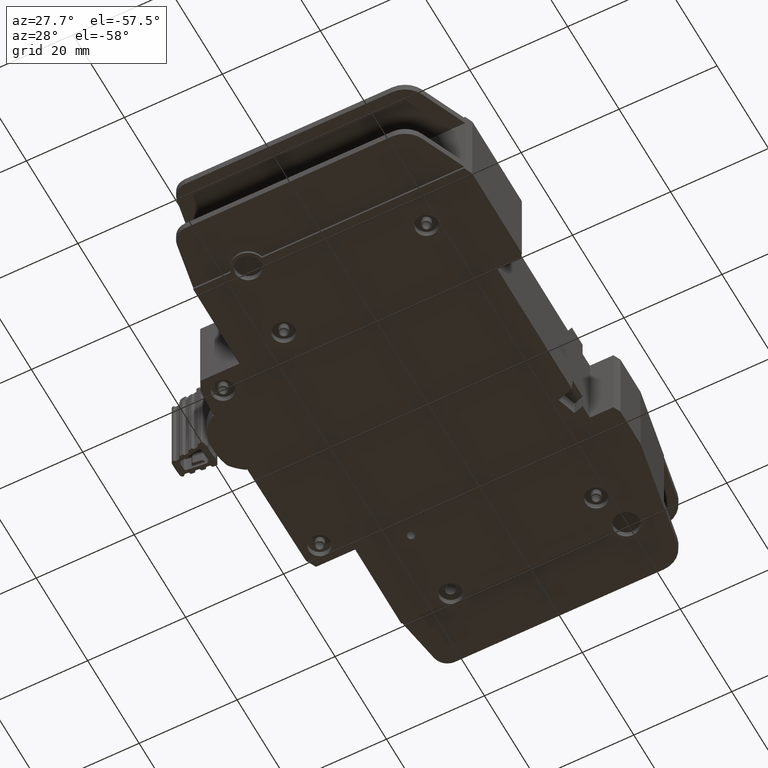
[diagram: clean part render]
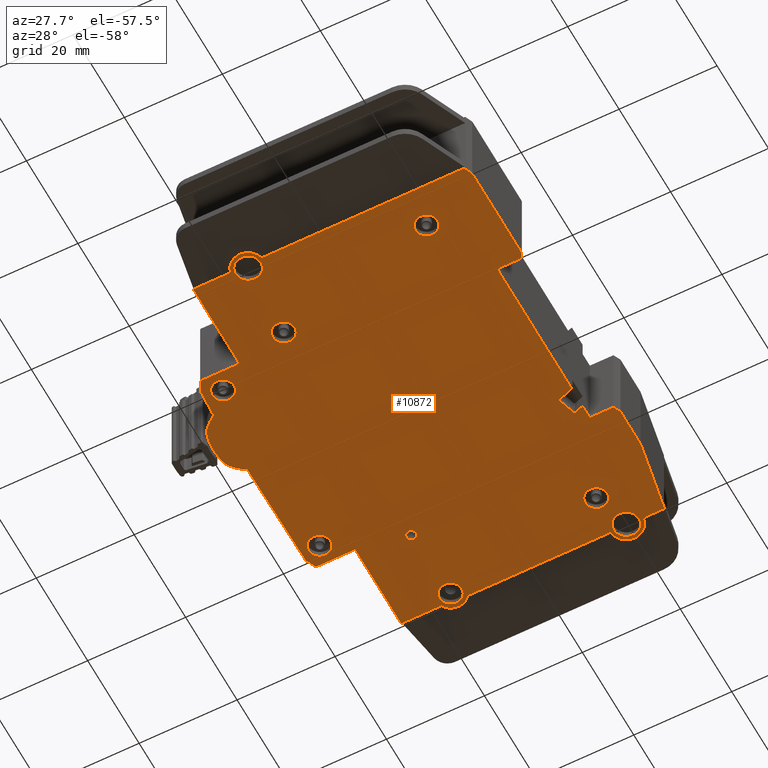
[diagram: same view with one face highlighted and labeled with its STEP entity id]
A machine part, auxiliary view. The second image highlights one B-rep face of the part: STEP entity #10872.
In plain terms, the highlighted planar face has unit normal (0, 0, -1).
Its self-contained STEP definition (entity closure, byte-faithful):
#1 = EDGE_CURVE ( 'NONE', #31551, #203, #27832, .T. ) ;
#8 = CARTESIAN_POINT ( 'NONE',  ( 1.456692913385826849, 1.299212598425196985, 0.0000000000000000000 ) ) ;
#156 = CARTESIAN_POINT ( 'NONE',  ( 0.2914000834140259566, -1.602362204724410377, 0.0000000000000000000 ) ) ;
#162 = VERTEX_POINT ( 'NONE', #7066 ) ;
#167 = DIRECTION ( 'NONE',  ( -1.000000000000000000, 0.0000000000000000000, 0.0000000000000000000 ) ) ;
#203 = VERTEX_POINT ( 'NONE', #4779 ) ;
#233 = EDGE_CURVE ( 'NONE', #17826, #17899, #19640, .T. ) ;
#293 = AXIS2_PLACEMENT_3D ( 'NONE', #4706, #29381, #1325 ) ;
#318 = CARTESIAN_POINT ( 'NONE',  ( 1.845290172061811118, 1.602362204724409711, 0.0000000000000000000 ) ) ;
#328 = AXIS2_PLACEMENT_3D ( 'NONE', #21219, #15981, #6201 ) ;
#342 = AXIS2_PLACEMENT_3D ( 'NONE', #3867, #13817, #13662 ) ;
#366 = CARTESIAN_POINT ( 'NONE',  ( -0.6349828163406381343, -0.06777308917113357423, 0.0000000000000000000 ) ) ;
#408 = CARTESIAN_POINT ( 'NONE',  ( 1.732283464566910514, 0.5669291338582094220, 0.0000000000000000000 ) ) ;
#468 = DIRECTION ( 'NONE',  ( -0.3049106779729056083, -0.9523809523809803057, 0.0000000000000000000 ) ) ;
#476 = DIRECTION ( 'NONE',  ( 0.0000000000000000000, 0.0000000000000000000, -1.000000000000000000 ) ) ;
#513 = VECTOR ( 'NONE', #13830, 39.37007874015748143 ) ;
#520 = LINE ( 'NONE', #15047, #16093 ) ;
#621 = VECTOR ( 'NONE', #11258, 39.37007874015748143 ) ;
#655 = DIRECTION ( 'NONE',  ( 0.0000000000000000000, 0.0000000000000000000, -1.000000000000000000 ) ) ;
#677 = ORIENTED_EDGE ( 'NONE', *, *, #31386, .T. ) ;
#768 = CARTESIAN_POINT ( 'NONE',  ( -0.6296502118858919861, -0.5765006055866820356, 0.0000000000000000000 ) ) ;
#774 = VECTOR ( 'NONE', #4413, 39.37007874015748143 ) ;
#783 = VERTEX_POINT ( 'NONE', #8164 ) ;
#891 = CARTESIAN_POINT ( 'NONE',  ( 1.413624652818894933, 1.602362204724409711, 0.0000000000000000000 ) ) ;
#904 = DIRECTION ( 'NONE',  ( 0.0000000000000000000, 0.0000000000000000000, -1.000000000000000000 ) ) ;
#987 = AXIS2_PLACEMENT_3D ( 'NONE', #2042, #22283, #24106 ) ;
#997 = VECTOR ( 'NONE', #8603, 39.37007874015747433 ) ;
#1152 = VERTEX_POINT ( 'NONE', #8122 ) ;
#1179 = DIRECTION ( 'NONE',  ( -1.000000000000000000, 0.0000000000000000000, 0.0000000000000000000 ) ) ;
#1205 = DIRECTION ( 'NONE',  ( 0.0000000000000000000, 0.0000000000000000000, -1.000000000000000000 ) ) ;
#1235 = VERTEX_POINT ( 'NONE', #15462 ) ;
#1302 = ORIENTED_EDGE ( 'NONE', *, *, #7611, .T. ) ;
#1325 = DIRECTION ( 'NONE',  ( -1.000000000000000000, 0.0000000000000000000, 0.0000000000000000000 ) ) ;
#1333 = CARTESIAN_POINT ( 'NONE',  ( 0.1456692913385821964, 0.9645669291338583307, 0.0000000000000000000 ) ) ;
#1495 = VERTEX_POINT ( 'NONE', #13982 ) ;
#1561 = VERTEX_POINT ( 'NONE', #14296 ) ;
#1574 = CARTESIAN_POINT ( 'NONE',  ( 0.06299212598425200926, -1.570866141732283339, 0.0000000000000000000 ) ) ;
#1729 = CARTESIAN_POINT ( 'NONE',  ( 1.456692913385826849, -1.299212598425196985, 0.0000000000000000000 ) ) ;
#1856 = CARTESIAN_POINT ( 'NONE',  ( 0.03759857685364219326, -1.594488188976377119, 0.0000000000000000000 ) ) ;
#1938 = EDGE_LOOP ( 'NONE', ( #6015, #32004 ) ) ;
#1956 = ORIENTED_EDGE ( 'NONE', *, *, #25618, .T. ) ;
#2007 = CARTESIAN_POINT ( 'NONE',  ( 1.922442001620825236, -0.7416773991594151072, 0.0000000000000000000 ) ) ;
#2036 = EDGE_CURVE ( 'NONE', #27119, #2867, #15822, .T. ) ;
#2042 = CARTESIAN_POINT ( 'NONE',  ( -0.6064378462204724762, -0.8040211424700787202, 0.0000000000000000000 ) ) ;
#2068 = FACE_BOUND ( 'NONE', #4543, .T. ) ;
#2085 = CARTESIAN_POINT ( 'NONE',  ( 0.04921259842519688094, -0.9724409448818898127, 0.0000000000000000000 ) ) ;
#2111 = LINE ( 'NONE', #9464, #27637 ) ;
#2170 = ORIENTED_EDGE ( 'NONE', *, *, #19224, .F. ) ;
#2181 = DIRECTION ( 'NONE',  ( 0.0000000000000000000, 0.0000000000000000000, -1.000000000000000000 ) ) ;
#2269 = EDGE_CURVE ( 'NONE', #203, #3573, #13542, .T. ) ;
#2273 = LINE ( 'NONE', #9620, #774 ) ;
#2311 = CARTESIAN_POINT ( 'NONE',  ( 1.948818897637821124, 1.036077788417322898, 0.0000000000000000000 ) ) ;
#2365 = VERTEX_POINT ( 'NONE', #2417 ) ;
#2417 = CARTESIAN_POINT ( 'NONE',  ( 0.2677165354330708902, -1.570866141732283339, 0.0000000000000000000 ) ) ;
#2451 = EDGE_LOOP ( 'NONE', ( #19439, #16288 ) ) ;
#2532 = EDGE_CURVE ( 'NONE', #4050, #24825, #12858, .T. ) ;
#2786 = CARTESIAN_POINT ( 'NONE',  ( 0.2718902293522447167, 1.602362204724409933, 0.0000000000000000000 ) ) ;
#2867 = VERTEX_POINT ( 'NONE', #29980 ) ;
#2893 = DIRECTION ( 'NONE',  ( 0.0000000000000000000, 0.0000000000000000000, -1.000000000000000000 ) ) ;
#2905 = VECTOR ( 'NONE', #9213, 39.37007874015748143 ) ;
#2975 = DIRECTION ( 'NONE',  ( 0.6139406135174030332, -0.7893522173743953152, 0.0000000000000000000 ) ) ;
#2976 = ORIENTED_EDGE ( 'NONE', *, *, #5401, .T. ) ;
#3067 = CARTESIAN_POINT ( 'NONE',  ( -0.4724409448818898127, -0.7401574803149606474, 0.0000000000000000000 ) ) ;
#3097 = DIRECTION ( 'NONE',  ( -1.000000000000000000, 0.0000000000000000000, 0.0000000000000000000 ) ) ;
#3117 = DIRECTION ( 'NONE',  ( -8.478819844830520351E-14, -1.000000000000000000, 0.0000000000000000000 ) ) ;
#3189 = DIRECTION ( 'NONE',  ( -0.9523809523811807010, 0.3049106779722792759, 0.0000000000000000000 ) ) ;
#3262 = ORIENTED_EDGE ( 'NONE', *, *, #13115, .T. ) ;
#3309 = CARTESIAN_POINT ( 'NONE',  ( -0.5714405434401574890, 0.8740157480314961758, 0.0000000000000000000 ) ) ;
#3441 = EDGE_CURVE ( 'NONE', #7361, #4239, #12511, .T. ) ;
#3573 = VERTEX_POINT ( 'NONE', #8271 ) ;
#3860 = DIRECTION ( 'NONE',  ( 1.000000000000000000, 0.0000000000000000000, 0.0000000000000000000 ) ) ;
#3867 = CARTESIAN_POINT ( 'NONE',  ( 1.456692913385826849, -1.299212598425196985, 0.0000000000000000000 ) ) ;
#3879 = CARTESIAN_POINT ( 'NONE',  ( -0.2637795275551181318, -0.8858267716535433989, 0.0000000000000000000 ) ) ;
#3964 = ORIENTED_EDGE ( 'NONE', *, *, #11913, .F. ) ;
#4050 = VERTEX_POINT ( 'NONE', #21292 ) ;
#4087 = DIRECTION ( 'NONE',  ( -1.000000000000000000, 0.0000000000000000000, 0.0000000000000000000 ) ) ;
#4156 = CARTESIAN_POINT ( 'NONE',  ( 1.543307086614173596, 1.594488188976378007, 0.0000000000000000000 ) ) ;
#4193 = EDGE_CURVE ( 'NONE', #5305, #10523, #26830, .T. ) ;
#4239 = VERTEX_POINT ( 'NONE', #10149 ) ;
#4256 = DIRECTION ( 'NONE',  ( 0.0000000000000000000, 0.0000000000000000000, -1.000000000000000000 ) ) ;
#4323 = EDGE_CURVE ( 'NONE', #27127, #9149, #27330, .T. ) ;
#4369 = CARTESIAN_POINT ( 'NONE',  ( 0.1377952755905511861, -0.9724409448818898127, 0.0000000000000000000 ) ) ;
#4413 = DIRECTION ( 'NONE',  ( -0.0000000000000000000, 1.000000000000000000, -0.0000000000000000000 ) ) ;
#4415 = VERTEX_POINT ( 'NONE', #22485 ) ;
#4481 = CARTESIAN_POINT ( 'NONE',  ( 0.1653543307086614567, 1.531496062992125928, 0.0000000000000000000 ) ) ;
#4516 = CARTESIAN_POINT ( 'NONE',  ( -0.3838582677165353618, -0.7401574803149606474, 0.0000000000000000000 ) ) ;
#4532 = CARTESIAN_POINT ( 'NONE',  ( 0.1653543307086614567, 1.531496062992125928, 0.0000000000000000000 ) ) ;
#4543 = EDGE_LOOP ( 'NONE', ( #3964, #25817 ) ) ;
#4556 = LINE ( 'NONE', #12048, #23949 ) ;
#4585 = VERTEX_POINT ( 'NONE', #1574 ) ;
#4638 = DIRECTION ( 'NONE',  ( -1.000000000000000000, 0.0000000000000000000, 0.0000000000000000000 ) ) ;
#4658 = DIRECTION ( 'NONE',  ( 0.0000000000000000000, 0.0000000000000000000, -1.000000000000000000 ) ) ;
#4692 = VERTEX_POINT ( 'NONE', #26877 ) ;
#4706 = CARTESIAN_POINT ( 'NONE',  ( 1.919334315725590656, -0.7440944881889763884, 0.0000000000000000000 ) ) ;
#4725 = CIRCLE ( 'NONE', #17750, 0.08858267716535440928 ) ;
#4760 = CARTESIAN_POINT ( 'NONE',  ( 1.368110236220472231, -1.299212598425196985, 0.0000000000000000000 ) ) ;
#4779 = CARTESIAN_POINT ( 'NONE',  ( 1.948818897637795589, -1.535433070866142113, 0.0000000000000000000 ) ) ;
#4844 = DIRECTION ( 'NONE',  ( -1.000000000000000000, 4.439704500431484846E-16, -0.0000000000000000000 ) ) ;
#4862 = EDGE_CURVE ( 'NONE', #24432, #783, #28922, .T. ) ;
#4873 = CIRCLE ( 'NONE', #23118, 0.03937007874015751446 ) ;
#4924 = CIRCLE ( 'NONE', #23186, 0.1023622047244094335 ) ;
#4979 = ORIENTED_EDGE ( 'NONE', *, *, #6341, .T. ) ;
#5002 = EDGE_LOOP ( 'NONE', ( #7218, #23379 ) ) ;
#5091 = CARTESIAN_POINT ( 'NONE',  ( 1.948818897637821124, 1.036077788417322898, 0.0000000000000000000 ) ) ;
#5105 = DIRECTION ( 'NONE',  ( -1.000000000000000000, 0.0000000000000000000, 0.0000000000000000000 ) ) ;
#5112 = ORIENTED_EDGE ( 'NONE', *, *, #13773, .T. ) ;
#5151 = DIRECTION ( 'NONE',  ( 0.0000000000000000000, 0.0000000000000000000, -1.000000000000000000 ) ) ;
#5169 = VERTEX_POINT ( 'NONE', #9523 ) ;
#5232 = CARTESIAN_POINT ( 'NONE',  ( -0.5714405434401574890, -0.8740157480314961758, 0.0000000000000000000 ) ) ;
#5265 = VECTOR ( 'NONE', #25042, 39.37007874015748143 ) ;
#5305 = VERTEX_POINT ( 'NONE', #15215 ) ;
#5363 = EDGE_CURVE ( 'NONE', #4692, #26745, #4873, .T. ) ;
#5379 = VERTEX_POINT ( 'NONE', #18330 ) ;
#5401 = EDGE_CURVE ( 'NONE', #5495, #8620, #21099, .T. ) ;
#5495 = VERTEX_POINT ( 'NONE', #26803 ) ;
#5519 = DIRECTION ( 'NONE',  ( -1.000000000000000000, 0.0000000000000000000, 0.0000000000000000000 ) ) ;
#5569 = AXIS2_PLACEMENT_3D ( 'NONE', #27894, #15141, #10418 ) ;
#5580 = LINE ( 'NONE', #5091, #16130 ) ;
#5644 = CARTESIAN_POINT ( 'NONE',  ( -0.5714405434401574890, 0.8858267716535432879, 0.0000000000000000000 ) ) ;
#5744 = LINE ( 'NONE', #2786, #26592 ) ;
#5772 = ORIENTED_EDGE ( 'NONE', *, *, #6898, .T. ) ;
#5849 = CARTESIAN_POINT ( 'NONE',  ( 1.944881889763779625, 0.7332128660531496145, 0.0000000000000000000 ) ) ;
#5850 = ORIENTED_EDGE ( 'NONE', *, *, #4193, .T. ) ;
#6015 = ORIENTED_EDGE ( 'NONE', *, *, #10838, .F. ) ;
#6030 = ORIENTED_EDGE ( 'NONE', *, *, #29300, .T. ) ;
#6099 = EDGE_CURVE ( 'NONE', #16084, #25057, #30465, .T. ) ;
#6103 = CIRCLE ( 'NONE', #342, 0.08858267716535440928 ) ;
#6201 = DIRECTION ( 'NONE',  ( -1.000000000000000000, 0.0000000000000000000, 0.0000000000000000000 ) ) ;
#6203 = CARTESIAN_POINT ( 'NONE',  ( 1.732283464566929165, 0.6771653543307086798, 0.0000000000000000000 ) ) ;
#6210 = CARTESIAN_POINT ( 'NONE',  ( 1.948818897637795589, -1.535433070866142113, 0.0000000000000000000 ) ) ;
#6341 = EDGE_CURVE ( 'NONE', #27586, #4415, #21948, .T. ) ;
#6357 = VECTOR ( 'NONE', #22536, 39.37007874015748854 ) ;
#6377 = ORIENTED_EDGE ( 'NONE', *, *, #30903, .T. ) ;
#6408 = CARTESIAN_POINT ( 'NONE',  ( -0.2637795275551181318, 1.590918757138582551, 0.0000000000000000000 ) ) ;
#6497 = EDGE_CURVE ( 'NONE', #162, #8159, #24750, .T. ) ;
#6742 = CIRCLE ( 'NONE', #30191, 0.003937007873978161723 ) ;
#6810 = LINE ( 'NONE', #26081, #22155 ) ;
#6855 = ORIENTED_EDGE ( 'NONE', *, *, #10353, .T. ) ;
#6898 = EDGE_CURVE ( 'NONE', #13786, #14812, #6810, .T. ) ;
#6976 = VERTEX_POINT ( 'NONE', #14141 ) ;
#6985 = DIRECTION ( 'NONE',  ( -1.000000000000000000, 0.0000000000000000000, 0.0000000000000000000 ) ) ;
#7000 = VECTOR ( 'NONE', #12277, 39.37007874015748854 ) ;
#7053 = CIRCLE ( 'NONE', #13824, 0.1023622047244094335 ) ;
#7066 = CARTESIAN_POINT ( 'NONE',  ( -0.5610236220472442081, 0.7401574803149606474, 0.0000000000000000000 ) ) ;
#7067 = CARTESIAN_POINT ( 'NONE',  ( 1.605525877484638819, 0.4421570320558844136, 0.0000000000000000000 ) ) ;
#7179 = CIRCLE ( 'NONE', #25437, 0.07874015748035355367 ) ;
#7218 = ORIENTED_EDGE ( 'NONE', *, *, #20511, .F. ) ;
#7228 = ORIENTED_EDGE ( 'NONE', *, *, #5363, .F. ) ;
#7307 = DIRECTION ( 'NONE',  ( 0.0000000000000000000, 0.0000000000000000000, -1.000000000000000000 ) ) ;
#7361 = VERTEX_POINT ( 'NONE', #26529 ) ;
#7372 = EDGE_CURVE ( 'NONE', #9149, #27127, #13322, .T. ) ;
#7379 = VECTOR ( 'NONE', #25184, 39.37007874015748143 ) ;
#7407 = AXIS2_PLACEMENT_3D ( 'NONE', #5232, #30541, #27441 ) ;
#7462 = ORIENTED_EDGE ( 'NONE', *, *, #22506, .T. ) ;
#7477 = CARTESIAN_POINT ( 'NONE',  ( 0.1377952755905511861, -0.9724409448818898127, 0.0000000000000000000 ) ) ;
#7481 = VECTOR ( 'NONE', #8689, 39.37007874015748143 ) ;
#7548 = AXIS2_PLACEMENT_3D ( 'NONE', #28144, #23555, #1179 ) ;
#7611 = EDGE_CURVE ( 'NONE', #1152, #21867, #8213, .T. ) ;
#7636 = CIRCLE ( 'NONE', #26921, 0.08858267716535431213 ) ;
#7664 = ORIENTED_EDGE ( 'NONE', *, *, #2036, .T. ) ;
#7859 = DIRECTION ( 'NONE',  ( 1.000000000000000000, -2.392717551047946201E-16, 0.0000000000000000000 ) ) ;
#7891 = DIRECTION ( 'NONE',  ( -1.000000000000000000, 0.0000000000000000000, 0.0000000000000000000 ) ) ;
#7894 = AXIS2_PLACEMENT_3D ( 'NONE', #18843, #13007, #19173 ) ;
#7903 = DIRECTION ( 'NONE',  ( -0.4472135954999984508, 0.8944271909998956493, -0.0000000000000000000 ) ) ;
#7968 = DIRECTION ( 'NONE',  ( 0.0000000000000000000, 0.0000000000000000000, -1.000000000000000000 ) ) ;
#8056 = LINE ( 'NONE', #22274, #16465 ) ;
#8122 = CARTESIAN_POINT ( 'NONE',  ( -0.6349828163406381343, -0.06777308917113357423, 0.0000000000000000000 ) ) ;
#8158 = ORIENTED_EDGE ( 'NONE', *, *, #2532, .T. ) ;
#8159 = VERTEX_POINT ( 'NONE', #18782 ) ;
#8164 = CARTESIAN_POINT ( 'NONE',  ( -0.7444939905114448253, -0.4710958578853602918, 0.0000000000000000000 ) ) ;
#8213 = LINE ( 'NONE', #366, #28998 ) ;
#8233 = CARTESIAN_POINT ( 'NONE',  ( 1.948818897637770275, -0.7769413690948819839, 0.0000000000000000000 ) ) ;
#8244 = AXIS2_PLACEMENT_3D ( 'NONE', #32169, #9471, #29567 ) ;
#8271 = CARTESIAN_POINT ( 'NONE',  ( 1.919020127361367845, -1.602362204724387951, 0.0000000000000000000 ) ) ;
#8467 = ORIENTED_EDGE ( 'NONE', *, *, #6497, .F. ) ;
#8603 = DIRECTION ( 'NONE',  ( 0.4472135954999986174, 0.8944271909998956493, -0.0000000000000000000 ) ) ;
#8620 = VERTEX_POINT ( 'NONE', #22417 ) ;
#8681 = CIRCLE ( 'NONE', #5569, 0.4448818897637299430 ) ;
#8689 = DIRECTION ( 'NONE',  ( 1.000000000000000000, 0.0000000000000000000, 0.0000000000000000000 ) ) ;
#8759 = VERTEX_POINT ( 'NONE', #17838 ) ;
#8770 = EDGE_LOOP ( 'NONE', ( #16023, #7228 ) ) ;
#8795 = CARTESIAN_POINT ( 'NONE',  ( 0.1653543307086614567, -1.570866141732283339, 0.0000000000000000000 ) ) ;
#8863 = VERTEX_POINT ( 'NONE', #21273 ) ;
#8867 = AXIS2_PLACEMENT_3D ( 'NONE', #4532, #26742, #31645 ) ;
#8947 = FACE_BOUND ( 'NONE', #8770, .T. ) ;
#9145 = VERTEX_POINT ( 'NONE', #156 ) ;
#9149 = VERTEX_POINT ( 'NONE', #20584 ) ;
#9175 = CARTESIAN_POINT ( 'NONE',  ( -0.7298093061432797679, -0.4974845272153619047, 0.0000000000000000000 ) ) ;
#9213 = DIRECTION ( 'NONE',  ( -1.000000000000000000, -2.719356138054787318E-15, 0.0000000000000000000 ) ) ;
#9310 = CARTESIAN_POINT ( 'NONE',  ( 0.1653543307086614567, 1.531496062992125928, 0.0000000000000000000 ) ) ;
#9425 = CARTESIAN_POINT ( 'NONE',  ( -0.3897637795275590844, -0.2106240460257480240, 0.0000000000000000000 ) ) ;
#9464 = CARTESIAN_POINT ( 'NONE',  ( 1.948403256657479377, 0.7314521826062998500, 0.0000000000000000000 ) ) ;
#9471 = DIRECTION ( 'NONE',  ( 0.0000000000000000000, 0.0000000000000000000, -1.000000000000000000 ) ) ;
#9523 = CARTESIAN_POINT ( 'NONE',  ( -0.7298093061433471584, -0.1521100215288963553, 0.0000000000000000000 ) ) ;
#9564 = CARTESIAN_POINT ( 'NONE',  ( 1.440944881889764106, 1.594488188976378007, 0.0000000000000000000 ) ) ;
#9601 = VERTEX_POINT ( 'NONE', #15634 ) ;
#9620 = CARTESIAN_POINT ( 'NONE',  ( -0.2637795275551181318, 1.590918757138582551, 0.0000000000000000000 ) ) ;
#9711 = CARTESIAN_POINT ( 'NONE',  ( -0.7444939905114569267, -0.1784986908589939192, 0.0000000000000000000 ) ) ;
#9825 = CARTESIAN_POINT ( 'NONE',  ( 0.2263779527559055260, -0.9724409448818898127, 0.0000000000000000000 ) ) ;
#9899 = VECTOR ( 'NONE', #5105, 39.37007874015748143 ) ;
#9941 = ORIENTED_EDGE ( 'NONE', *, *, #25277, .T. ) ;
#9965 = EDGE_CURVE ( 'NONE', #13723, #31759, #31762, .T. ) ;
#9988 = LINE ( 'NONE', #21926, #19682 ) ;
#10013 = ORIENTED_EDGE ( 'NONE', *, *, #233, .T. ) ;
#10037 = CARTESIAN_POINT ( 'NONE',  ( 0.03759857685364219326, -1.594488188976377119, 0.0000000000000000000 ) ) ;
#10149 = CARTESIAN_POINT ( 'NONE',  ( -0.5714405434401574890, -0.8858267716534541369, 0.0000000000000000000 ) ) ;
#10353 = EDGE_CURVE ( 'NONE', #17899, #16084, #28578, .T. ) ;
#10360 = EDGE_CURVE ( 'NONE', #5379, #25988, #31794, .T. ) ;
#10377 = EDGE_CURVE ( 'NONE', #6976, #13723, #5744, .T. ) ;
#10418 = DIRECTION ( 'NONE',  ( -1.000000000000000000, 0.0000000000000000000, 0.0000000000000000000 ) ) ;
#10446 = DIRECTION ( 'NONE',  ( -1.000000000000000000, 0.0000000000000000000, 0.0000000000000000000 ) ) ;
#10474 = EDGE_CURVE ( 'NONE', #21446, #1561, #5580, .T. ) ;
#10523 = VERTEX_POINT ( 'NONE', #28431 ) ;
#10695 = EDGE_CURVE ( 'NONE', #1235, #17826, #2111, .T. ) ;
#10704 = AXIS2_PLACEMENT_3D ( 'NONE', #1729, #13978, #28702 ) ;
#10820 = EDGE_CURVE ( 'NONE', #24578, #7361, #11070, .T. ) ;
#10838 = EDGE_CURVE ( 'NONE', #25439, #29886, #11988, .T. ) ;
#10872 = ADVANCED_FACE ( 'NONE', ( #8947, #21842, #24606, #2068, #21360, #24292, #31802, #16608, #26425, #23978 ), #11561, .T. ) ;
#11036 = CIRCLE ( 'NONE', #7407, 0.01181102362195790914 ) ;
#11070 = LINE ( 'NONE', #3879, #513 ) ;
#11258 = DIRECTION ( 'NONE',  ( -0.4067366430744553396, -0.9135454576431996099, 0.0000000000000000000 ) ) ;
#11515 = VECTOR ( 'NONE', #13663, 39.37007874015748143 ) ;
#11531 = ORIENTED_EDGE ( 'NONE', *, *, #25729, .T. ) ;
#11561 = PLANE ( 'NONE',  #30798 ) ;
#11643 = EDGE_CURVE ( 'NONE', #14812, #5495, #2273, .T. ) ;
#11654 = LINE ( 'NONE', #1856, #2905 ) ;
#11692 = EDGE_CURVE ( 'NONE', #25057, #5305, #30213, .T. ) ;
#11885 = DIRECTION ( 'NONE',  ( 0.0000000000000000000, 0.0000000000000000000, -1.000000000000000000 ) ) ;
#11913 = EDGE_CURVE ( 'NONE', #4585, #2365, #4924, .T. ) ;
#11988 = CIRCLE ( 'NONE', #8867, 0.08858267716535435377 ) ;
#12048 = CARTESIAN_POINT ( 'NONE',  ( -0.6181463552397717942, 0.8043817697972884817, 0.0000000000000000000 ) ) ;
#12058 = EDGE_CURVE ( 'NONE', #8159, #162, #29988, .T. ) ;
#12184 = DIRECTION ( 'NONE',  ( 0.0000000000000000000, 0.0000000000000000000, -1.000000000000000000 ) ) ;
#12277 = DIRECTION ( 'NONE',  ( 0.9523809523809037003, -0.3049106779731448058, 0.0000000000000000000 ) ) ;
#12314 = ORIENTED_EDGE ( 'NONE', *, *, #21435, .T. ) ;
#12390 = ORIENTED_EDGE ( 'NONE', *, *, #14448, .T. ) ;
#12458 = AXIS2_PLACEMENT_3D ( 'NONE', #5849, #25600, #5519 ) ;
#12511 = LINE ( 'NONE', #24296, #26775 ) ;
#12732 = CIRCLE ( 'NONE', #30993, 0.1299212598425135978 ) ;
#12740 = AXIS2_PLACEMENT_3D ( 'NONE', #12806, #5151, #25068 ) ;
#12806 = CARTESIAN_POINT ( 'NONE',  ( -0.6696242571846456881, -0.4467127606330708600, 0.0000000000000000000 ) ) ;
#12858 = LINE ( 'NONE', #768, #16801 ) ;
#12894 = DIRECTION ( 'NONE',  ( 0.0000000000000000000, 0.0000000000000000000, -1.000000000000000000 ) ) ;
#13007 = DIRECTION ( 'NONE',  ( 0.0000000000000000000, 0.0000000000000000000, -1.000000000000000000 ) ) ;
#13115 = EDGE_CURVE ( 'NONE', #4415, #29344, #15953, .T. ) ;
#13121 = EDGE_LOOP ( 'NONE', ( #8467, #26495 ) ) ;
#13322 = CIRCLE ( 'NONE', #18004, 0.1023622047244093780 ) ;
#13355 = DIRECTION ( 'NONE',  ( -1.000000000000000000, 0.0000000000000000000, 0.0000000000000000000 ) ) ;
#13398 = DIRECTION ( 'NONE',  ( 0.0000000000000000000, 0.0000000000000000000, -1.000000000000000000 ) ) ;
#13542 = LINE ( 'NONE', #6210, #621 ) ;
#13662 = DIRECTION ( 'NONE',  ( -1.000000000000000000, 0.0000000000000000000, 0.0000000000000000000 ) ) ;
#13663 = DIRECTION ( 'NONE',  ( 0.9629150408531764738, 0.2698047888728543620, 0.0000000000000000000 ) ) ;
#13680 = DIRECTION ( 'NONE',  ( 0.0000000000000000000, 0.0000000000000000000, -1.000000000000000000 ) ) ;
#13723 = VERTEX_POINT ( 'NONE', #891 ) ;
#13749 = AXIS2_PLACEMENT_3D ( 'NONE', #25167, #655, #15188 ) ;
#13760 = VERTEX_POINT ( 'NONE', #31104 ) ;
#13773 = EDGE_CURVE ( 'NONE', #30250, #8759, #15303, .T. ) ;
#13786 = VERTEX_POINT ( 'NONE', #5644 ) ;
#13817 = DIRECTION ( 'NONE',  ( 0.0000000000000000000, 0.0000000000000000000, -1.000000000000000000 ) ) ;
#13824 = AXIS2_PLACEMENT_3D ( 'NONE', #25816, #13398, #167 ) ;
#13830 = DIRECTION ( 'NONE',  ( -0.0000000000000000000, 1.000000000000000000, -0.0000000000000000000 ) ) ;
#13949 = EDGE_CURVE ( 'NONE', #22558, #5169, #27856, .T. ) ;
#13978 = DIRECTION ( 'NONE',  ( 0.0000000000000000000, 0.0000000000000000000, -1.000000000000000000 ) ) ;
#13982 = CARTESIAN_POINT ( 'NONE',  ( -0.5820046441210989796, -0.8792977983719671986, 0.0000000000000000000 ) ) ;
#14141 = CARTESIAN_POINT ( 'NONE',  ( 0.2718902293522447167, 1.602362204724409933, 0.0000000000000000000 ) ) ;
#14231 = CARTESIAN_POINT ( 'NONE',  ( 1.543307086614173596, 1.594488188976378007, 0.0000000000000000000 ) ) ;
#14262 = CARTESIAN_POINT ( 'NONE',  ( 1.732283464566929387, -0.7401574803149606474, 0.0000000000000000000 ) ) ;
#14296 = CARTESIAN_POINT ( 'NONE',  ( 1.948818897637794922, 0.7332128660531496145, 0.0000000000000000000 ) ) ;
#14340 = CIRCLE ( 'NONE', #17473, 0.08858267716535440928 ) ;
#14351 = CARTESIAN_POINT ( 'NONE',  ( 1.672989520409452702, 1.602362204724409933, 0.0000000000000000000 ) ) ;
#14448 = EDGE_CURVE ( 'NONE', #9145, #20807, #12732, .T. ) ;
#14548 = AXIS2_PLACEMENT_3D ( 'NONE', #14231, #904, #26501 ) ;
#14592 = ORIENTED_EDGE ( 'NONE', *, *, #29902, .T. ) ;
#14812 = VERTEX_POINT ( 'NONE', #19317 ) ;
#15015 = CARTESIAN_POINT ( 'NONE',  ( -0.2637795275551181318, -1.594488188976378007, 0.0000000000000000000 ) ) ;
#15047 = CARTESIAN_POINT ( 'NONE',  ( 1.922442001620825236, -0.7416773991594151072, 0.0000000000000000000 ) ) ;
#15066 = EDGE_CURVE ( 'NONE', #2365, #4585, #7053, .T. ) ;
#15141 = DIRECTION ( 'NONE',  ( 0.0000000000000000000, 0.0000000000000000000, -1.000000000000000000 ) ) ;
#15188 = DIRECTION ( 'NONE',  ( -1.000000000000000000, 0.0000000000000000000, 0.0000000000000000000 ) ) ;
#15215 = CARTESIAN_POINT ( 'NONE',  ( 1.605525877484638819, 0.4421570320558844136, 0.0000000000000000000 ) ) ;
#15226 = CARTESIAN_POINT ( 'NONE',  ( -0.6296502118858919861, -0.5765006055866820356, 0.0000000000000000000 ) ) ;
#15303 = CIRCLE ( 'NONE', #19497, 0.01181102362205270484 ) ;
#15379 = ORIENTED_EDGE ( 'NONE', *, *, #27697, .T. ) ;
#15383 = AXIS2_PLACEMENT_3D ( 'NONE', #26434, #11885, #6985 ) ;
#15462 = CARTESIAN_POINT ( 'NONE',  ( 1.948403256657479377, 0.7314521826062998500, 0.0000000000000000000 ) ) ;
#15612 = LINE ( 'NONE', #20527, #21977 ) ;
#15634 = CARTESIAN_POINT ( 'NONE',  ( 0.2658964968681764018, 1.600682785815352727, 0.0000000000000000000 ) ) ;
#15717 = AXIS2_PLACEMENT_3D ( 'NONE', #3309, #22914, #7891 ) ;
#15732 = EDGE_CURVE ( 'NONE', #28358, #20160, #7636, .T. ) ;
#15822 = LINE ( 'NONE', #318, #6357 ) ;
#15953 = CIRCLE ( 'NONE', #293, 0.003937007874028700290 ) ;
#15981 = DIRECTION ( 'NONE',  ( 0.0000000000000000000, 0.0000000000000000000, -1.000000000000000000 ) ) ;
#16023 = ORIENTED_EDGE ( 'NONE', *, *, #21831, .F. ) ;
#16024 = ORIENTED_EDGE ( 'NONE', *, *, #13949, .T. ) ;
#16084 = VERTEX_POINT ( 'NONE', #19034 ) ;
#16093 = VECTOR ( 'NONE', #2975, 39.37007874015748854 ) ;
#16097 = EDGE_LOOP ( 'NONE', ( #17368, #2170 ) ) ;
#16130 = VECTOR ( 'NONE', #3117, 39.37007874015748143 ) ;
#16152 = VERTEX_POINT ( 'NONE', #19672 ) ;
#16249 = VERTEX_POINT ( 'NONE', #28936 ) ;
#16288 = ORIENTED_EDGE ( 'NONE', *, *, #10360, .F. ) ;
#16427 = CARTESIAN_POINT ( 'NONE',  ( 1.368110236220472231, 1.299212598425196985, 0.0000000000000000000 ) ) ;
#16465 = VECTOR ( 'NONE', #7903, 39.37007874015748854 ) ;
#16608 = FACE_BOUND ( 'NONE', #1938, .T. ) ;
#16801 = VECTOR ( 'NONE', #24957, 39.37007874015748854 ) ;
#16850 = ORIENTED_EDGE ( 'NONE', *, *, #7372, .F. ) ;
#16882 = AXIS2_PLACEMENT_3D ( 'NONE', #24469, #19720, #17259 ) ;
#17250 = DIRECTION ( 'NONE',  ( -1.000000000000000000, 0.0000000000000000000, 0.0000000000000000000 ) ) ;
#17259 = DIRECTION ( 'NONE',  ( -1.000000000000000000, 0.0000000000000000000, 0.0000000000000000000 ) ) ;
#17349 = VERTEX_POINT ( 'NONE', #27142 ) ;
#17368 = ORIENTED_EDGE ( 'NONE', *, *, #26809, .F. ) ;
#17473 = AXIS2_PLACEMENT_3D ( 'NONE', #29682, #7307, #17250 ) ;
#17593 = EDGE_CURVE ( 'NONE', #8620, #9601, #30141, .T. ) ;
#17620 = ORIENTED_EDGE ( 'NONE', *, *, #25804, .T. ) ;
#17666 = ORIENTED_EDGE ( 'NONE', *, *, #15732, .F. ) ;
#17680 = LINE ( 'NONE', #15226, #5265 ) ;
#17681 = CIRCLE ( 'NONE', #12458, 0.003937007874015314296 ) ;
#17750 = AXIS2_PLACEMENT_3D ( 'NONE', #3067, #7968, #22992 ) ;
#17826 = VERTEX_POINT ( 'NONE', #27862 ) ;
#17838 = CARTESIAN_POINT ( 'NONE',  ( -0.6169004851980348647, 0.8095061162181120817, 0.0000000000000000000 ) ) ;
#17899 = VERTEX_POINT ( 'NONE', #23602 ) ;
#17982 = CARTESIAN_POINT ( 'NONE',  ( 1.672989520409452702, 1.602362204724409933, 0.0000000000000000000 ) ) ;
#18004 = AXIS2_PLACEMENT_3D ( 'NONE', #4156, #21624, #31583 ) ;
#18064 = EDGE_CURVE ( 'NONE', #1495, #26367, #8056, .T. ) ;
#18089 = LINE ( 'NONE', #23150, #11515 ) ;
#18140 = DIRECTION ( 'NONE',  ( -1.685159948090863645E-13, -1.000000000000000000, 0.0000000000000000000 ) ) ;
#18330 = CARTESIAN_POINT ( 'NONE',  ( 1.545275590551181244, 1.299212598425196985, 0.0000000000000000000 ) ) ;
#18483 = DIRECTION ( 'NONE',  ( 0.0000000000000000000, 0.0000000000000000000, -1.000000000000000000 ) ) ;
#18557 = ORIENTED_EDGE ( 'NONE', *, *, #24919, .T. ) ;
#18665 = AXIS2_PLACEMENT_3D ( 'NONE', #9310, #4256, #4087 ) ;
#18762 = DIRECTION ( 'NONE',  ( -1.000000000000000000, 0.0000000000000000000, 0.0000000000000000000 ) ) ;
#18782 = CARTESIAN_POINT ( 'NONE',  ( -0.3838582677165353618, 0.7401574803149606474, 0.0000000000000000000 ) ) ;
#18787 = VECTOR ( 'NONE', #23089, 39.37007874015748143 ) ;
#18843 = CARTESIAN_POINT ( 'NONE',  ( -0.2952755905511810774, -0.3247972743722046807, 0.0000000000000000000 ) ) ;
#18858 = CARTESIAN_POINT ( 'NONE',  ( -0.6170019469016427838, -0.8093031928106640960, 0.0000000000000000000 ) ) ;
#18885 = ORIENTED_EDGE ( 'NONE', *, *, #1, .T. ) ;
#19026 = ORIENTED_EDGE ( 'NONE', *, *, #2269, .T. ) ;
#19034 = CARTESIAN_POINT ( 'NONE',  ( 1.732283464566910514, 0.5669291338582094220, 0.0000000000000000000 ) ) ;
#19173 = DIRECTION ( 'NONE',  ( -1.000000000000000000, 0.0000000000000000000, 0.0000000000000000000 ) ) ;
#19224 = EDGE_CURVE ( 'NONE', #30560, #30565, #14340, .T. ) ;
#19315 = ORIENTED_EDGE ( 'NONE', *, *, #22508, .T. ) ;
#19317 = CARTESIAN_POINT ( 'NONE',  ( -0.2637795275551181318, 0.8858267716535432879, 0.0000000000000000000 ) ) ;
#19392 = DIRECTION ( 'NONE',  ( 0.0000000000000000000, 0.0000000000000000000, -1.000000000000000000 ) ) ;
#19439 = ORIENTED_EDGE ( 'NONE', *, *, #20047, .F. ) ;
#19497 = AXIS2_PLACEMENT_3D ( 'NONE', #23427, #1205, #25715 ) ;
#19514 = DIRECTION ( 'NONE',  ( -1.000000000000000000, 0.0000000000000000000, 0.0000000000000000000 ) ) ;
#19583 = DIRECTION ( 'NONE',  ( -0.4472135954999436058, -0.8944271909999230719, 0.0000000000000000000 ) ) ;
#19640 = LINE ( 'NONE', #27477, #9899 ) ;
#19672 = CARTESIAN_POINT ( 'NONE',  ( 1.545275590551181244, -1.299212598425196985, 0.0000000000000000000 ) ) ;
#19682 = VECTOR ( 'NONE', #24383, 39.37007874015748143 ) ;
#19720 = DIRECTION ( 'NONE',  ( 0.0000000000000000000, 0.0000000000000000000, -1.000000000000000000 ) ) ;
#19869 = CIRCLE ( 'NONE', #31870, 0.08858267716535435377 ) ;
#19894 = CARTESIAN_POINT ( 'NONE',  ( 0.1062992125984246888, 0.9645669291338583307, 0.0000000000000000000 ) ) ;
#20008 = EDGE_CURVE ( 'NONE', #5169, #1152, #21723, .T. ) ;
#20042 = VECTOR ( 'NONE', #31909, 39.37007874015748143 ) ;
#20047 = EDGE_CURVE ( 'NONE', #25988, #5379, #25354, .T. ) ;
#20130 = DIRECTION ( 'NONE',  ( 0.0000000000000000000, 0.0000000000000000000, -1.000000000000000000 ) ) ;
#20160 = VERTEX_POINT ( 'NONE', #2085 ) ;
#20434 = DIRECTION ( 'NONE',  ( -1.000000000000000000, 0.0000000000000000000, 0.0000000000000000000 ) ) ;
#20511 = EDGE_CURVE ( 'NONE', #27994, #16152, #23813, .T. ) ;
#20527 = CARTESIAN_POINT ( 'NONE',  ( 1.919020127361367845, -1.602362204724387951, 0.0000000000000000000 ) ) ;
#20563 = VECTOR ( 'NONE', #3189, 39.37007874015748854 ) ;
#20584 = CARTESIAN_POINT ( 'NONE',  ( 1.645669291338582862, 1.594488188976378007, 0.0000000000000000000 ) ) ;
#20695 = DIRECTION ( 'NONE',  ( -1.000000000000000000, -1.342744827368392009E-14, 0.0000000000000000000 ) ) ;
#20807 = VERTEX_POINT ( 'NONE', #10037 ) ;
#21099 = LINE ( 'NONE', #6408, #7481 ) ;
#21187 = CARTESIAN_POINT ( 'NONE',  ( -0.5820046441211025323, 0.8792977983719688639, 0.0000000000000000000 ) ) ;
#21219 = CARTESIAN_POINT ( 'NONE',  ( 1.456692913385826849, 1.299212598425196985, 0.0000000000000000000 ) ) ;
#21273 = CARTESIAN_POINT ( 'NONE',  ( -0.6182341064369752948, -0.8046115016019425026, 0.0000000000000000000 ) ) ;
#21292 = CARTESIAN_POINT ( 'NONE',  ( -0.6296502118858919861, -0.5765006055866820356, 0.0000000000000000000 ) ) ;
#21360 = FACE_BOUND ( 'NONE', #29921, .T. ) ;
#21366 = AXIS2_PLACEMENT_3D ( 'NONE', #8, #28114, #20434 ) ;
#21435 = EDGE_CURVE ( 'NONE', #10523, #27586, #9988, .T. ) ;
#21446 = VERTEX_POINT ( 'NONE', #2311 ) ;
#21624 = DIRECTION ( 'NONE',  ( 0.0000000000000000000, 0.0000000000000000000, -1.000000000000000000 ) ) ;
#21723 = CIRCLE ( 'NONE', #32134, 0.4448818897637235037 ) ;
#21831 = EDGE_CURVE ( 'NONE', #26745, #4692, #28590, .T. ) ;
#21842 = FACE_BOUND ( 'NONE', #2451, .T. ) ;
#21867 = VERTEX_POINT ( 'NONE', #24811 ) ;
#21926 = CARTESIAN_POINT ( 'NONE',  ( 1.732283464566929165, 0.4015748031496061965, 0.0000000000000000000 ) ) ;
#21939 = ORIENTED_EDGE ( 'NONE', *, *, #4323, .F. ) ;
#21948 = LINE ( 'NONE', #14262, #20042 ) ;
#21977 = VECTOR ( 'NONE', #20695, 39.37007874015748143 ) ;
#21987 = CARTESIAN_POINT ( 'NONE',  ( 1.845290172061811118, 1.602362204724409711, 0.0000000000000000000 ) ) ;
#22020 = DIRECTION ( 'NONE',  ( 0.01335226520749477688, 0.9999108545334571829, -0.0000000000000000000 ) ) ;
#22155 = VECTOR ( 'NONE', #3860, 39.37007874015748143 ) ;
#22238 = CIRCLE ( 'NONE', #30600, 0.08858267716535431213 ) ;
#22273 = ORIENTED_EDGE ( 'NONE', *, *, #18064, .T. ) ;
#22274 = CARTESIAN_POINT ( 'NONE',  ( -0.6170019469017321567, -0.8093031928107088380, 0.0000000000000000000 ) ) ;
#22283 = DIRECTION ( 'NONE',  ( 0.0000000000000000000, 0.0000000000000000000, -1.000000000000000000 ) ) ;
#22417 = CARTESIAN_POINT ( 'NONE',  ( 0.05875004743896405923, 1.590918757138576556, 0.0000000000000000000 ) ) ;
#22418 = CARTESIAN_POINT ( 'NONE',  ( 1.732283464566929387, -0.7401574803149606474, 0.0000000000000000000 ) ) ;
#22474 = CIRCLE ( 'NONE', #15717, 0.01181102362195989020 ) ;
#22485 = CARTESIAN_POINT ( 'NONE',  ( 1.919334315725590656, -0.7401574803149478798, 0.0000000000000000000 ) ) ;
#22506 = EDGE_CURVE ( 'NONE', #17349, #31551, #6742, .T. ) ;
#22508 = EDGE_CURVE ( 'NONE', #26367, #8863, #23936, .T. ) ;
#22536 = DIRECTION ( 'NONE',  ( 0.1820892601823826118, -0.9832820049844462895, 0.0000000000000000000 ) ) ;
#22558 = VERTEX_POINT ( 'NONE', #9711 ) ;
#22572 = DIRECTION ( 'NONE',  ( 0.7071067811865474617, -0.7071067811865474617, 0.0000000000000000000 ) ) ;
#22573 = ORIENTED_EDGE ( 'NONE', *, *, #31427, .F. ) ;
#22645 = CARTESIAN_POINT ( 'NONE',  ( -0.6181463552397712391, 0.8043817697972884817, 0.0000000000000000000 ) ) ;
#22732 = ORIENTED_EDGE ( 'NONE', *, *, #29549, .T. ) ;
#22854 = CARTESIAN_POINT ( 'NONE',  ( -0.3897637795275590844, -0.4389705027185039632, 0.0000000000000000000 ) ) ;
#22914 = DIRECTION ( 'NONE',  ( 0.0000000000000000000, 0.0000000000000000000, -1.000000000000000000 ) ) ;
#22992 = DIRECTION ( 'NONE',  ( -1.000000000000000000, 0.0000000000000000000, 0.0000000000000000000 ) ) ;
#23020 = CARTESIAN_POINT ( 'NONE',  ( 0.2539370078740157965, 1.531496062992125928, 0.0000000000000000000 ) ) ;
#23089 = DIRECTION ( 'NONE',  ( 3.349566815529835091E-14, -1.000000000000000000, 0.0000000000000000000 ) ) ;
#23118 = AXIS2_PLACEMENT_3D ( 'NONE', #1333, #18483, #26164 ) ;
#23150 = CARTESIAN_POINT ( 'NONE',  ( 0.2658964968681764018, 1.600682785815352727, 0.0000000000000000000 ) ) ;
#23162 = ORIENTED_EDGE ( 'NONE', *, *, #11692, .T. ) ;
#23186 = AXIS2_PLACEMENT_3D ( 'NONE', #8795, #13680, #18762 ) ;
#23379 = ORIENTED_EDGE ( 'NONE', *, *, #31547, .F. ) ;
#23427 = CARTESIAN_POINT ( 'NONE',  ( -0.6063363845169291722, 0.8042240658775590134, 0.0000000000000000000 ) ) ;
#23476 = CARTESIAN_POINT ( 'NONE',  ( 1.948818897637770275, -0.7769413690948819839, 0.0000000000000000000 ) ) ;
#23546 = CARTESIAN_POINT ( 'NONE',  ( 1.653543307086627223, 0.5921382843992084588, 0.0000000000000000000 ) ) ;
#23555 = DIRECTION ( 'NONE',  ( 0.0000000000000000000, 0.0000000000000000000, -1.000000000000000000 ) ) ;
#23602 = CARTESIAN_POINT ( 'NONE',  ( 1.732283464566929165, 0.6771653543307086798, 0.0000000000000000000 ) ) ;
#23605 = ORIENTED_EDGE ( 'NONE', *, *, #10820, .T. ) ;
#23725 = EDGE_LOOP ( 'NONE', ( #8158, #677, #31375, #6030, #9941, #16024, #25334, #1302, #1956, #5112, #17620, #15379, #5772, #32156, #2976, #24103, #25019, #29570, #29256, #22732, #7664, #27352, #24112, #11531, #24322, #10013, #6855, #26208, #23162, #5850, #12314, #4979, #3262, #18557, #7462, #18885, #19026, #30921, #12390, #6377, #23605, #29632, #14592, #22273, #19315, #31290 ) ) ;
#23813 = CIRCLE ( 'NONE', #10704, 0.08858267716535440928 ) ;
#23936 = CIRCLE ( 'NONE', #987, 0.01181102362212434718 ) ;
#23949 = VECTOR ( 'NONE', #22020, 39.37007874015748143 ) ;
#23966 = CARTESIAN_POINT ( 'NONE',  ( -0.5610236220472442081, -0.7401574803149606474, 0.0000000000000000000 ) ) ;
#23978 = FACE_OUTER_BOUND ( 'NONE', #23725, .T. ) ;
#24103 = ORIENTED_EDGE ( 'NONE', *, *, #17593, .T. ) ;
#24106 = DIRECTION ( 'NONE',  ( -1.000000000000000000, 0.0000000000000000000, 0.0000000000000000000 ) ) ;
#24112 = ORIENTED_EDGE ( 'NONE', *, *, #10474, .T. ) ;
#24134 = EDGE_CURVE ( 'NONE', #2867, #21446, #7179, .T. ) ;
#24239 = VECTOR ( 'NONE', #468, 39.37007874015748143 ) ;
#24292 = FACE_BOUND ( 'NONE', #16097, .T. ) ;
#24296 = CARTESIAN_POINT ( 'NONE',  ( -0.5714405434401574890, -0.8858267716535432879, 0.0000000000000000000 ) ) ;
#24322 = ORIENTED_EDGE ( 'NONE', *, *, #10695, .T. ) ;
#24383 = DIRECTION ( 'NONE',  ( 2.392722035830078972E-16, -1.000000000000000000, 0.0000000000000000000 ) ) ;
#24432 = VERTEX_POINT ( 'NONE', #9175 ) ;
#24452 = CIRCLE ( 'NONE', #24964, 0.4724409448818077117 ) ;
#24469 = CARTESIAN_POINT ( 'NONE',  ( 1.543307086614173596, 1.594488188976378007, 0.0000000000000000000 ) ) ;
#24578 = VERTEX_POINT ( 'NONE', #15015 ) ;
#24606 = FACE_BOUND ( 'NONE', #5002, .T. ) ;
#24750 = CIRCLE ( 'NONE', #7548, 0.08858267716535440928 ) ;
#24811 = CARTESIAN_POINT ( 'NONE',  ( -0.6298610299787089639, -0.07289487553306277234, 0.0000000000000000000 ) ) ;
#24825 = VERTEX_POINT ( 'NONE', #29450 ) ;
#24919 = EDGE_CURVE ( 'NONE', #29344, #17349, #520, .T. ) ;
#24957 = DIRECTION ( 'NONE',  ( -0.7071067811867197683, -0.7071067811863751551, 0.0000000000000000000 ) ) ;
#24958 = DIRECTION ( 'NONE',  ( -1.000000000000000000, 0.0000000000000000000, 0.0000000000000000000 ) ) ;
#24964 = AXIS2_PLACEMENT_3D ( 'NONE', #27607, #12894, #3097 ) ;
#25019 = ORIENTED_EDGE ( 'NONE', *, *, #26915, .T. ) ;
#25032 = DIRECTION ( 'NONE',  ( -1.000000000000000000, 0.0000000000000000000, 0.0000000000000000000 ) ) ;
#25042 = DIRECTION ( 'NONE',  ( -0.04998373982908889401, 0.9987500316659309041, -0.0000000000000000000 ) ) ;
#25057 = VERTEX_POINT ( 'NONE', #23546 ) ;
#25068 = DIRECTION ( 'NONE',  ( -1.000000000000000000, 0.0000000000000000000, 0.0000000000000000000 ) ) ;
#25139 = CARTESIAN_POINT ( 'NONE',  ( 1.653543307086627223, 0.5921382843992084588, 0.0000000000000000000 ) ) ;
#25167 = CARTESIAN_POINT ( 'NONE',  ( -0.6696242571846456881, -0.2028817881112204846, 0.0000000000000000000 ) ) ;
#25184 = DIRECTION ( 'NONE',  ( 1.000000000000000000, -1.585512281854953550E-15, 0.0000000000000000000 ) ) ;
#25277 = EDGE_CURVE ( 'NONE', #13760, #22558, #24452, .T. ) ;
#25334 = ORIENTED_EDGE ( 'NONE', *, *, #20008, .T. ) ;
#25354 = CIRCLE ( 'NONE', #328, 0.08858267716535440928 ) ;
#25437 = AXIS2_PLACEMENT_3D ( 'NONE', #29936, #20130, #25032 ) ;
#25439 = VERTEX_POINT ( 'NONE', #31186 ) ;
#25600 = DIRECTION ( 'NONE',  ( 0.0000000000000000000, 0.0000000000000000000, -1.000000000000000000 ) ) ;
#25618 = EDGE_CURVE ( 'NONE', #21867, #30250, #4556, .T. ) ;
#25715 = DIRECTION ( 'NONE',  ( -1.000000000000000000, 0.0000000000000000000, 0.0000000000000000000 ) ) ;
#25729 = EDGE_CURVE ( 'NONE', #1561, #1235, #17681, .T. ) ;
#25804 = EDGE_CURVE ( 'NONE', #8759, #16249, #28547, .T. ) ;
#25816 = CARTESIAN_POINT ( 'NONE',  ( 0.1653543307086614567, -1.570866141732283339, 0.0000000000000000000 ) ) ;
#25817 = ORIENTED_EDGE ( 'NONE', *, *, #15066, .F. ) ;
#25988 = VERTEX_POINT ( 'NONE', #16427 ) ;
#26081 = CARTESIAN_POINT ( 'NONE',  ( -0.5714405434401574890, 0.8858267716535432879, 0.0000000000000000000 ) ) ;
#26164 = DIRECTION ( 'NONE',  ( -1.000000000000000000, 0.0000000000000000000, 0.0000000000000000000 ) ) ;
#26208 = ORIENTED_EDGE ( 'NONE', *, *, #6099, .T. ) ;
#26367 = VERTEX_POINT ( 'NONE', #18858 ) ;
#26425 = FACE_BOUND ( 'NONE', #27633, .T. ) ;
#26434 = CARTESIAN_POINT ( 'NONE',  ( -0.4724409448818898127, 0.7401574803149606474, 0.0000000000000000000 ) ) ;
#26495 = ORIENTED_EDGE ( 'NONE', *, *, #12058, .F. ) ;
#26501 = DIRECTION ( 'NONE',  ( -1.000000000000000000, 0.0000000000000000000, 0.0000000000000000000 ) ) ;
#26529 = CARTESIAN_POINT ( 'NONE',  ( -0.2637795275551181318, -0.8858267716535433989, 0.0000000000000000000 ) ) ;
#26558 = CARTESIAN_POINT ( 'NONE',  ( 1.944881889763779625, -0.7769413690948819839, 0.0000000000000000000 ) ) ;
#26592 = VECTOR ( 'NONE', #7859, 39.37007874015748143 ) ;
#26742 = DIRECTION ( 'NONE',  ( 0.0000000000000000000, 0.0000000000000000000, -1.000000000000000000 ) ) ;
#26745 = VERTEX_POINT ( 'NONE', #19894 ) ;
#26775 = VECTOR ( 'NONE', #4844, 39.37007874015748143 ) ;
#26803 = CARTESIAN_POINT ( 'NONE',  ( -0.2637795275551181318, 1.590918757138582551, 0.0000000000000000000 ) ) ;
#26809 = EDGE_CURVE ( 'NONE', #30565, #30560, #4725, .T. ) ;
#26830 = LINE ( 'NONE', #7067, #7000 ) ;
#26857 = DIRECTION ( 'NONE',  ( 0.0000000000000000000, 0.0000000000000000000, -1.000000000000000000 ) ) ;
#26877 = CARTESIAN_POINT ( 'NONE',  ( 0.1850393700787397178, 0.9645669291338583307, 0.0000000000000000000 ) ) ;
#26915 = EDGE_CURVE ( 'NONE', #9601, #6976, #18089, .T. ) ;
#26921 = AXIS2_PLACEMENT_3D ( 'NONE', #4369, #12184, #31959 ) ;
#27119 = VERTEX_POINT ( 'NONE', #21987 ) ;
#27127 = VERTEX_POINT ( 'NONE', #9564 ) ;
#27142 = CARTESIAN_POINT ( 'NONE',  ( 1.947989575658964023, -0.7745242800653595605, 0.0000000000000000000 ) ) ;
#27330 = CIRCLE ( 'NONE', #16882, 0.1023622047244093780 ) ;
#27352 = ORIENTED_EDGE ( 'NONE', *, *, #24134, .T. ) ;
#27441 = DIRECTION ( 'NONE',  ( -1.000000000000000000, 0.0000000000000000000, 0.0000000000000000000 ) ) ;
#27477 = CARTESIAN_POINT ( 'NONE',  ( 1.921259842519684957, 0.6771653543307086798, 0.0000000000000000000 ) ) ;
#27500 = EDGE_CURVE ( 'NONE', #29886, #25439, #19869, .T. ) ;
#27561 = EDGE_CURVE ( 'NONE', #8863, #4050, #17680, .T. ) ;
#27586 = VERTEX_POINT ( 'NONE', #22418 ) ;
#27607 = CARTESIAN_POINT ( 'NONE',  ( -0.2952755905511810774, -0.3247972743722046807, 0.0000000000000000000 ) ) ;
#27633 = EDGE_LOOP ( 'NONE', ( #21939, #16850 ) ) ;
#27637 = VECTOR ( 'NONE', #19583, 39.37007874015748143 ) ;
#27697 = EDGE_CURVE ( 'NONE', #16249, #13786, #22474, .T. ) ;
#27832 = LINE ( 'NONE', #8233, #18787 ) ;
#27856 = CIRCLE ( 'NONE', #13749, 0.07874015748040751050 ) ;
#27862 = CARTESIAN_POINT ( 'NONE',  ( 1.921259842519684957, 0.6771653543307086798, 0.0000000000000000000 ) ) ;
#27894 = CARTESIAN_POINT ( 'NONE',  ( -0.3897637795275590844, -0.2106240460257480240, 0.0000000000000000000 ) ) ;
#27994 = VERTEX_POINT ( 'NONE', #4760 ) ;
#28114 = DIRECTION ( 'NONE',  ( 0.0000000000000000000, 0.0000000000000000000, -1.000000000000000000 ) ) ;
#28144 = CARTESIAN_POINT ( 'NONE',  ( -0.4724409448818898127, 0.7401574803149606474, 0.0000000000000000000 ) ) ;
#28358 = VERTEX_POINT ( 'NONE', #9825 ) ;
#28431 = CARTESIAN_POINT ( 'NONE',  ( 1.732283464566929165, 0.4015748031496061965, 0.0000000000000000000 ) ) ;
#28547 = LINE ( 'NONE', #21187, #997 ) ;
#28578 = LINE ( 'NONE', #6203, #29715 ) ;
#28590 = CIRCLE ( 'NONE', #8244, 0.03937007874015751446 ) ;
#28702 = DIRECTION ( 'NONE',  ( -1.000000000000000000, 0.0000000000000000000, 0.0000000000000000000 ) ) ;
#28879 = DIRECTION ( 'NONE',  ( -1.000000000000000000, 0.0000000000000000000, -0.0000000000000000000 ) ) ;
#28922 = CIRCLE ( 'NONE', #12740, 0.07874015748041036933 ) ;
#28936 = CARTESIAN_POINT ( 'NONE',  ( -0.5820046441211805810, 0.8792977983720079438, 0.0000000000000000000 ) ) ;
#28998 = VECTOR ( 'NONE', #22572, 39.37007874015748854 ) ;
#29256 = ORIENTED_EDGE ( 'NONE', *, *, #9965, .T. ) ;
#29292 = EDGE_CURVE ( 'NONE', #3573, #9145, #15612, .T. ) ;
#29300 = EDGE_CURVE ( 'NONE', #783, #13760, #29789, .T. ) ;
#29344 = VERTEX_POINT ( 'NONE', #2007 ) ;
#29381 = DIRECTION ( 'NONE',  ( 0.0000000000000000000, 0.0000000000000000000, -1.000000000000000000 ) ) ;
#29450 = CARTESIAN_POINT ( 'NONE',  ( -0.6349757403136790934, -0.5818261340144523786, 0.0000000000000000000 ) ) ;
#29549 = EDGE_CURVE ( 'NONE', #31759, #27119, #30414, .T. ) ;
#29567 = DIRECTION ( 'NONE',  ( -1.000000000000000000, 0.0000000000000000000, 0.0000000000000000000 ) ) ;
#29570 = ORIENTED_EDGE ( 'NONE', *, *, #10377, .T. ) ;
#29632 = ORIENTED_EDGE ( 'NONE', *, *, #3441, .T. ) ;
#29682 = CARTESIAN_POINT ( 'NONE',  ( -0.4724409448818898127, -0.7401574803149606474, 0.0000000000000000000 ) ) ;
#29715 = VECTOR ( 'NONE', #18140, 39.37007874015748143 ) ;
#29789 = CIRCLE ( 'NONE', #7894, 0.4724409448818077117 ) ;
#29886 = VERTEX_POINT ( 'NONE', #23020 ) ;
#29902 = EDGE_CURVE ( 'NONE', #4239, #1495, #11036, .T. ) ;
#29921 = EDGE_LOOP ( 'NONE', ( #22573, #17666 ) ) ;
#29936 = CARTESIAN_POINT ( 'NONE',  ( 1.870078740157480324, 1.036077788417322898, 0.0000000000000000000 ) ) ;
#29980 = CARTESIAN_POINT ( 'NONE',  ( 1.947502520077535326, 1.050415525439662545, 0.0000000000000000000 ) ) ;
#29988 = CIRCLE ( 'NONE', #15383, 0.08858267716535440928 ) ;
#30141 = CIRCLE ( 'NONE', #18665, 0.1220472440945247761 ) ;
#30191 = AXIS2_PLACEMENT_3D ( 'NONE', #26558, #4658, #19514 ) ;
#30213 = LINE ( 'NONE', #25139, #24239 ) ;
#30250 = VERTEX_POINT ( 'NONE', #22645 ) ;
#30414 = LINE ( 'NONE', #17982, #7379 ) ;
#30465 = LINE ( 'NONE', #408, #20563 ) ;
#30541 = DIRECTION ( 'NONE',  ( 0.0000000000000000000, 0.0000000000000000000, -1.000000000000000000 ) ) ;
#30560 = VERTEX_POINT ( 'NONE', #4516 ) ;
#30565 = VERTEX_POINT ( 'NONE', #23966 ) ;
#30600 = AXIS2_PLACEMENT_3D ( 'NONE', #7477, #2893, #24958 ) ;
#30798 = AXIS2_PLACEMENT_3D ( 'NONE', #9425, #19392, #28879 ) ;
#30903 = EDGE_CURVE ( 'NONE', #20807, #24578, #11654, .T. ) ;
#30921 = ORIENTED_EDGE ( 'NONE', *, *, #29292, .T. ) ;
#30993 = AXIS2_PLACEMENT_3D ( 'NONE', #31440, #26857, #13355 ) ;
#31104 = CARTESIAN_POINT ( 'NONE',  ( -0.7677165354329887892, -0.3247972743722046807, 0.0000000000000000000 ) ) ;
#31186 = CARTESIAN_POINT ( 'NONE',  ( 0.07677165354330708902, 1.531496062992125928, 0.0000000000000000000 ) ) ;
#31290 = ORIENTED_EDGE ( 'NONE', *, *, #27561, .T. ) ;
#31375 = ORIENTED_EDGE ( 'NONE', *, *, #4862, .T. ) ;
#31386 = EDGE_CURVE ( 'NONE', #24825, #24432, #8681, .T. ) ;
#31427 = EDGE_CURVE ( 'NONE', #20160, #28358, #22238, .T. ) ;
#31440 = CARTESIAN_POINT ( 'NONE',  ( 0.1653543307086614567, -1.570866141732283339, 0.0000000000000000000 ) ) ;
#31547 = EDGE_CURVE ( 'NONE', #16152, #27994, #6103, .T. ) ;
#31551 = VERTEX_POINT ( 'NONE', #23476 ) ;
#31583 = DIRECTION ( 'NONE',  ( -1.000000000000000000, 0.0000000000000000000, 0.0000000000000000000 ) ) ;
#31645 = DIRECTION ( 'NONE',  ( -1.000000000000000000, 0.0000000000000000000, 0.0000000000000000000 ) ) ;
#31759 = VERTEX_POINT ( 'NONE', #14351 ) ;
#31762 = CIRCLE ( 'NONE', #14548, 0.1299212598425179555 ) ;
#31794 = CIRCLE ( 'NONE', #21366, 0.08858267716535440928 ) ;
#31802 = FACE_BOUND ( 'NONE', #13121, .T. ) ;
#31870 = AXIS2_PLACEMENT_3D ( 'NONE', #4481, #2181, #4638 ) ;
#31909 = DIRECTION ( 'NONE',  ( 1.000000000000000000, 0.0000000000000000000, 0.0000000000000000000 ) ) ;
#31959 = DIRECTION ( 'NONE',  ( -1.000000000000000000, 0.0000000000000000000, 0.0000000000000000000 ) ) ;
#32004 = ORIENTED_EDGE ( 'NONE', *, *, #27500, .F. ) ;
#32134 = AXIS2_PLACEMENT_3D ( 'NONE', #22854, #476, #10446 ) ;
#32156 = ORIENTED_EDGE ( 'NONE', *, *, #11643, .T. ) ;
#32169 = CARTESIAN_POINT ( 'NONE',  ( 0.1456692913385821964, 0.9645669291338583307, 0.0000000000000000000 ) ) ;